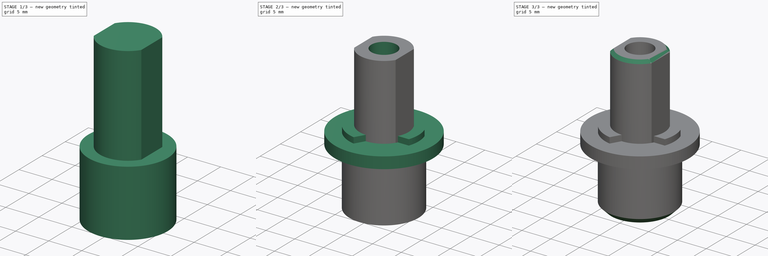
[diagram: build sequence overview — one tinted view per stage of 3, left to right]
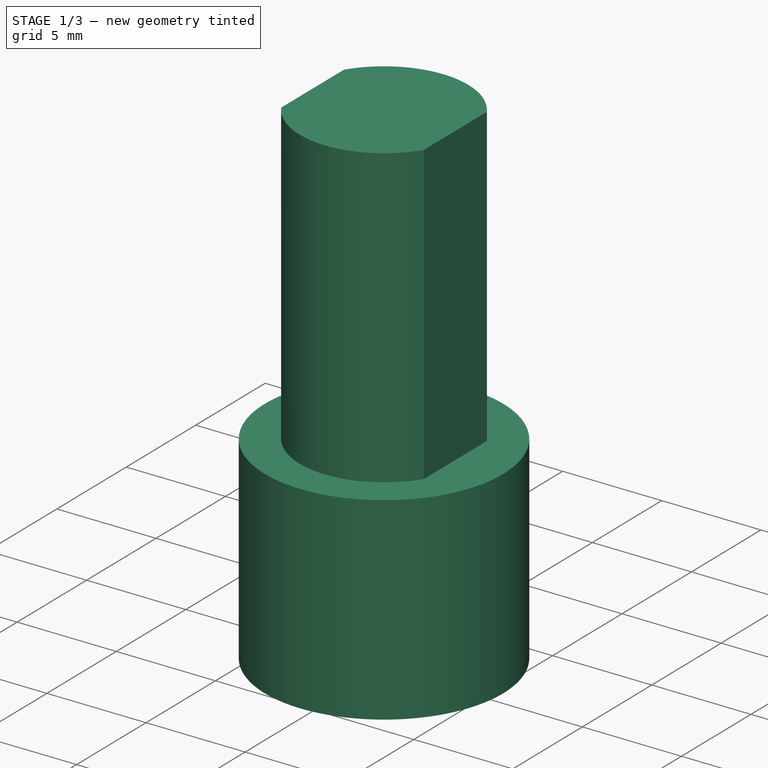
[diagram: stage 1 of 3 — iso view after this stage's code; geometry added in this stage tinted green]
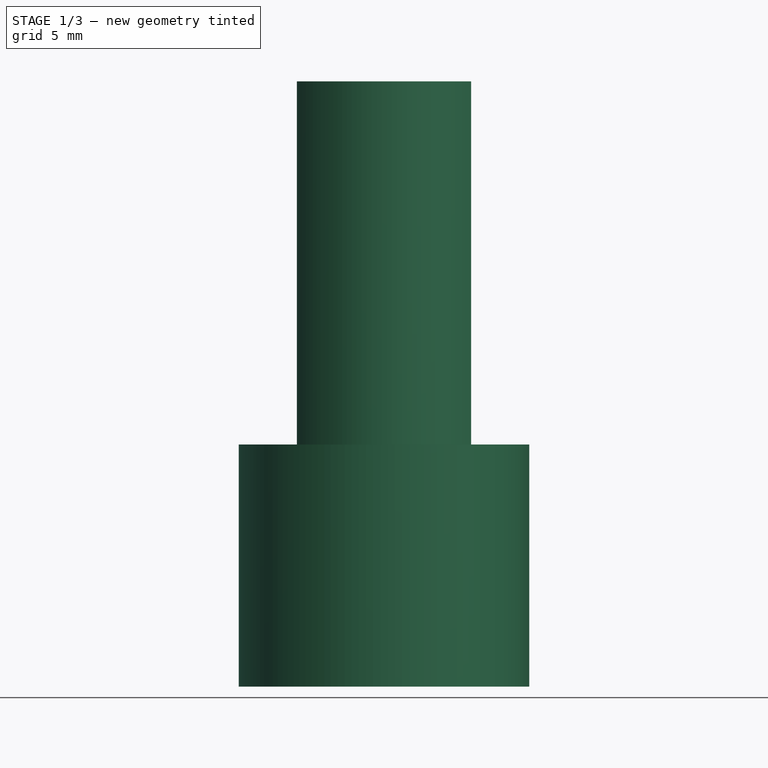
[diagram: stage 1 of 3 — front view after this stage's code; geometry added in this stage tinted green]
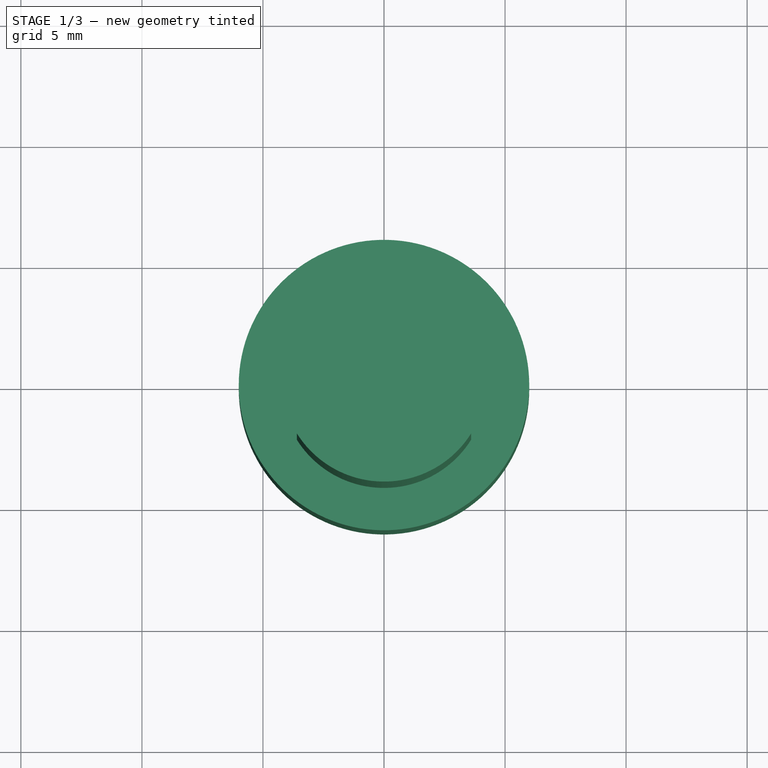
[diagram: stage 1 of 3 — top view after this stage's code; geometry added in this stage tinted green]
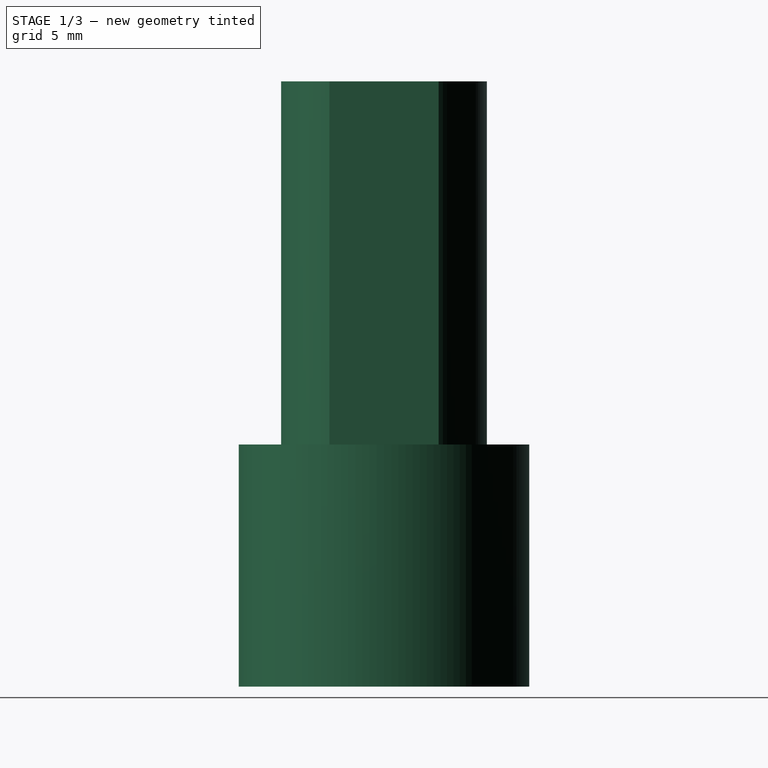
[diagram: stage 1 of 3 — right view after this stage's code; geometry added in this stage tinted green]
FCSTD DOCUMENT  (FreeCAD 0.19R24276 (Git))
Label: CS_In_bear_part_V2
License: All rights reserved
LicenseURL: http://en.wikipedia.org/wiki/All_rights_reserved
objects: Sketcher::SketchObject×5, PartDesign::Pad×4, PartDesign::Chamfer×2, PartDesign::Pocket×1, PartDesign::Body×1
note: 20 computed .brp shape members not serialized (recipe doc carries the construction recipe); baked Part::Feature solids carry a one-line shape summary decoded from their .brp

FEATURE [Sketcher::SketchObject] Sketch  label="Sketch_d12"
  FullyConstrained = true
  MapMode = 5
  Support = -> [XY_Plane]
  sketch-geometry (1):
    g0: Circle CenterX=0 CenterY=0 CenterZ=0 NormalX=0 NormalY=0 NormalZ=1 AngleXU=0 Radius=6
  constraints (2):
    c: Coincident(g0,g-1)
    c: Diameter(g0) = 12
FEATURE [PartDesign::Pad] Pad  label="Pad_h10"
  Direction = (1,1,1)
  Length = 10
  Length2 = 100
  Profile = -> Sketch
  Type = 0
FEATURE [Sketcher::SketchObject] Sketch001  label="Sketch001_d8,5"
  FullyConstrained = false
  MapMode = 5
  Placement = pos=(0,0,10) rot=(0,0,1;0rad)
  Support = -> [Pad]
  sketch-geometry (16):
    g0: ArcOfCircle CenterX=0 CenterY=0 CenterZ=0 NormalX=0 NormalY=0 NormalZ=1 AngleXU=0 Radius=4.25 StartAngle=3.70196 EndAngle=5.72282
    g1: LineSegment StartX=-7.37089 StartY=2.1 StartZ=0 EndX=-3.6 EndY=2.1 EndZ=0
    g2: LineSegment StartX=-3.6 StartY=2.1 StartZ=0 EndX=-3.6 EndY=-2.1 EndZ=0
    g3: LineSegment StartX=-3.6 StartY=-2.1 StartZ=0 EndX=-7.37089 EndY=-2.1 EndZ=0
    g4: LineSegment StartX=-7.37089 StartY=-2.1 StartZ=0 EndX=-7.37089 EndY=2.1 EndZ=0
    g5: LineSegment StartX=0 StartY=0 StartZ=0 EndX=-7.37089 EndY=0 EndZ=0
    g6: LineSegment StartX=-3.6 StartY=2.1 StartZ=0 EndX=-3.6 EndY=-2.25887 EndZ=0
    g7: LineSegment StartX=-3.6 StartY=-2.25887 StartZ=0 EndX=-3.6 EndY=2.25887 EndZ=0
    g8: LineSegment StartX=0 StartY=0 StartZ=0 EndX=0 EndY=3.57346 EndZ=0
    g9: LineSegment StartX=7.37089 StartY=2.1 StartZ=0 EndX=3.6 EndY=2.1 EndZ=0
    g10: LineSegment StartX=3.6 StartY=2.1 StartZ=0 EndX=3.6 EndY=-2.1 EndZ=0
    g11: LineSegment StartX=3.6 StartY=-2.1 StartZ=0 EndX=7.37089 EndY=-2.1 EndZ=0
    g12: LineSegment StartX=7.37089 StartY=-2.1 StartZ=0 EndX=7.37089 EndY=2.1 EndZ=0
    g13: LineSegment StartX=3.6 StartY=2.1 StartZ=0 EndX=3.6 EndY=-2.25887 EndZ=0
    g14: LineSegment StartX=3.6 StartY=-2.25887 StartZ=0 EndX=3.6 EndY=2.25887 EndZ=0
    g15: ArcOfCircle CenterX=0 CenterY=0 CenterZ=0 NormalX=0 NormalY=0 NormalZ=1 AngleXU=0 Radius=4.25 StartAngle=0.560369 EndAngle=2.58122
  constraints (33):
    c: Coincident(g0,g-1)
    c: Diameter(g0) = 8.5
    c: Coincident(g1,g2)
    c: Coincident(g2,g3)
    c: Coincident(g3,g4)
    c: Coincident(g4,g1)
    c: Horizontal(g1)
    c: Horizontal(g3)
    c: Vertical(g2)
    c: Vertical(g4)
    c: Coincident(g5,g0)
    c: PointOnObject(g5,g-1)
    c: Symmetric(g3,g1,g5)
    c: DistanceY(g3,g1) = 4.2
    c: DistanceX(g2,g0) = 3.6
    c: Coincident(g6,g1)
    c: Vertical(g6)
    c: Coincident(g7,g6)
    c: Vertical(g7)
    c: Coincident(g15,g7)
    c: Coincident(g0,g6)
    c: Coincident(g8,g0)
    c: PointOnObject(g8,g-2)
    c: Coincident(g9,g10)
    c: Coincident(g10,g11)
    c: Coincident(g11,g12)
    c: Coincident(g12,g9)
    c: Coincident(g13,g9)
    c: Coincident(g14,g13)
    c: Equal(g0,g15)
    c: Coincident(g0,g15)
    c: PointOnObject(g15,g14)
    c: PointOnObject(g0,g13)
FEATURE [PartDesign::Pad] Pad001  label="Pad001_h15"
  BaseFeature = -> Pad
  Direction = (1,1,1)
  Length = 15
  Length2 = 100
  Profile = -> Sketch001
  Type = 0
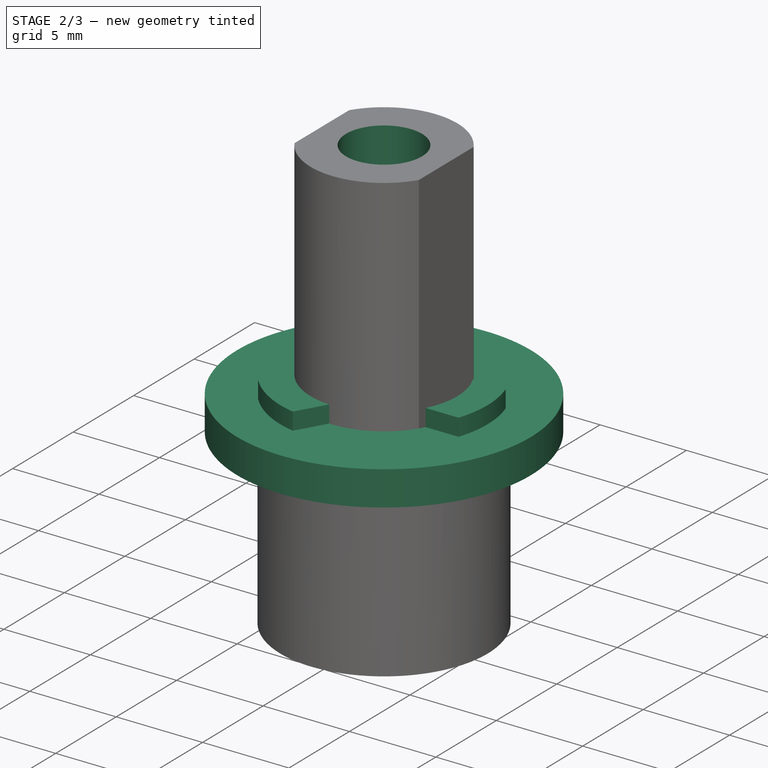
[diagram: stage 2 of 3 — iso view after this stage's code; geometry added in this stage tinted green]
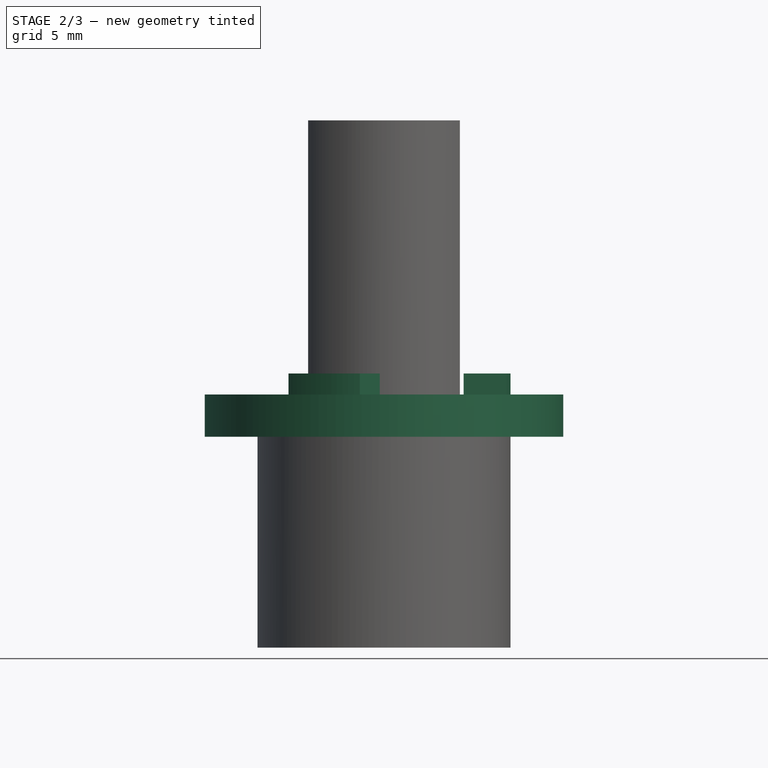
[diagram: stage 2 of 3 — front view after this stage's code; geometry added in this stage tinted green]
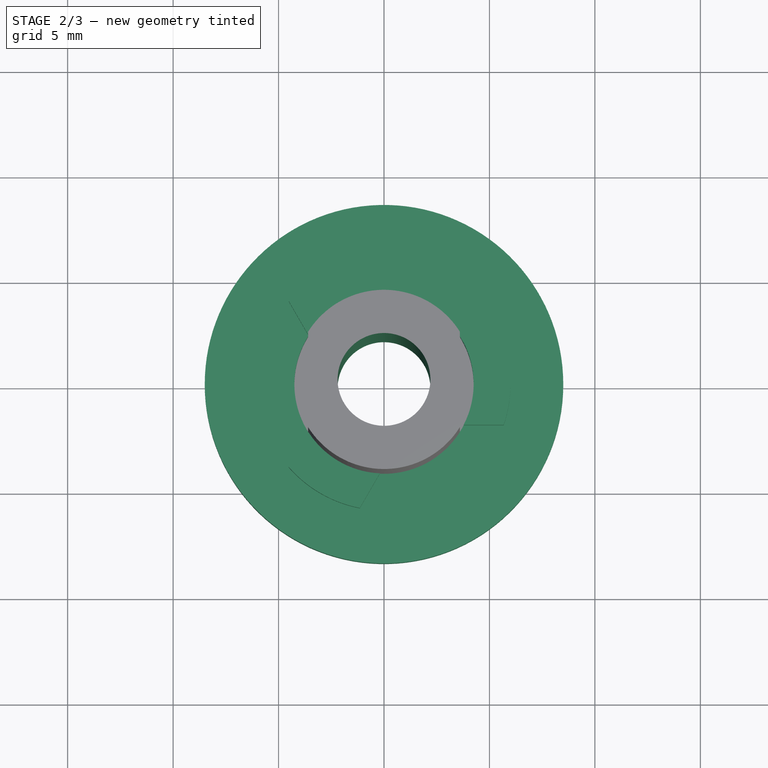
[diagram: stage 2 of 3 — top view after this stage's code; geometry added in this stage tinted green]
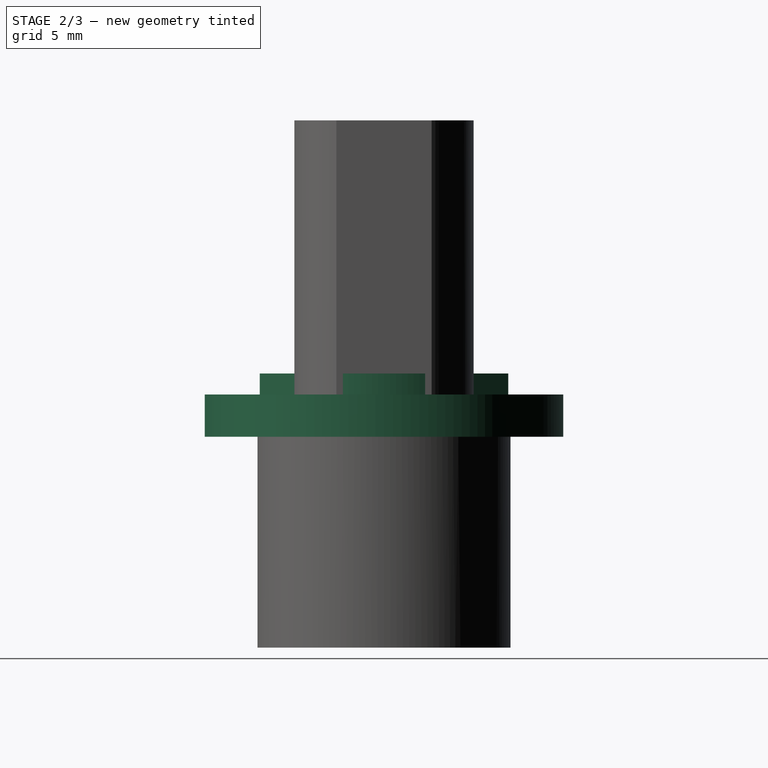
[diagram: stage 2 of 3 — right view after this stage's code; geometry added in this stage tinted green]
FEATURE [Sketcher::SketchObject] Sketch002  label="Sketch002_d4,4"
  FullyConstrained = true
  MapMode = 5
  Placement = pos=(0,0,25) rot=(0,0,1;0rad)
  Support = -> [Pad001]
  sketch-geometry (1):
    g0: Circle CenterX=0 CenterY=0 CenterZ=0 NormalX=0 NormalY=0 NormalZ=1 AngleXU=0 Radius=2.2
  constraints (2):
    c: Coincident(g0,g-1)
    c: Diameter(g0) = 4.4
FEATURE [PartDesign::Pocket] Pocket
  BaseFeature = -> Pad001
  Length = 5
  Length2 = 100
  Profile = -> Sketch002
  Type = 1
FEATURE [Sketcher::SketchObject] Sketch003  label="Sketch003_3angle"
  FullyConstrained = false
  MapMode = 5
  Placement = pos=(0,0,10) rot=(0,0,1;0rad)
  Support = -> [Pocket]
  sketch-geometry (29):
    g0: LineSegment StartX=10 StartY=0 StartZ=0 EndX=-5 EndY=8.66025 EndZ=0
    g1: LineSegment StartX=-5 StartY=8.66025 StartZ=0 EndX=-5 EndY=-8.66025 EndZ=0
    g2: LineSegment StartX=-5 StartY=-8.66025 StartZ=0 EndX=10 EndY=0 EndZ=0
    g3: Circle CenterX=0 CenterY=0 CenterZ=0 NormalX=0 NormalY=0 NormalZ=1 AngleXU=0 Radius=10
    g4: LineSegment StartX=0 StartY=0 StartZ=0 EndX=-5 EndY=8.66025 EndZ=0
    g5: LineSegment StartX=0 StartY=0 StartZ=0 EndX=-5 EndY=-8.66025 EndZ=0
    g6: LineSegment StartX=0 StartY=0 StartZ=0 EndX=8.76124 EndY=0 EndZ=0
    g7: LineSegment StartX=-6.68875 StartY=7.68525 StartZ=0 EndX=-1.879 EndY=-0.645478 EndZ=0
    g8: LineSegment StartX=-3.31125 StartY=9.63525 StartZ=0 EndX=1.70216 EndY=0.951767 EndZ=0
    g9: LineSegment StartX=-6.68875 StartY=7.68525 StartZ=0 EndX=-3.31125 EndY=9.63525 EndZ=0
    g10: LineSegment StartX=10 StartY=1.95 StartZ=0 EndX=0.680018 EndY=1.95 EndZ=0
    g11: LineSegment StartX=10 StartY=-1.95 StartZ=0 EndX=9.80803 EndY=-1.95 EndZ=0
    g12: LineSegment StartX=10 StartY=1.95 StartZ=0 EndX=10 EndY=-1.95 EndZ=0
    g13: LineSegment StartX=-6.68875 StartY=-7.68525 StartZ=0 EndX=-1.98378 EndY=0.463996 EndZ=0
    g14: LineSegment StartX=-3.31125 StartY=-9.63525 StartZ=0 EndX=1.64472 EndY=-1.05126 EndZ=0
    g15: LineSegment StartX=-3.31125 StartY=-9.63525 StartZ=0 EndX=-6.68875 EndY=-7.68525 EndZ=0
    g16: ArcOfCircle CenterX=0 CenterY=0 CenterZ=0 NormalX=0 NormalY=0 NormalZ=1 AngleXU=0 Radius=4.25 StartAngle=5.80651 EndAngle=6.75986
    g17: ArcOfCircle CenterX=0 CenterY=0 CenterZ=0 NormalX=0 NormalY=0 NormalZ=1 AngleXU=0 Radius=6 StartAngle=1.76338 EndAngle=2.42541
    g18: LineSegment StartX=5.67428 StartY=-1.95 StartZ=0 EndX=1.14275 EndY=-1.95 EndZ=0
    g19: ArcOfCircle CenterX=0 CenterY=0 CenterZ=0 NormalX=0 NormalY=0 NormalZ=1 AngleXU=0 Radius=6 StartAngle=3.85778 EndAngle=4.5198
    g20: ArcOfCircle CenterX=0 CenterY=0 CenterZ=0 NormalX=0 NormalY=0 NormalZ=1 AngleXU=0 Radius=6 StartAngle=5.95217 EndAngle=6.6142
    g21: ArcOfCircle CenterX=0 CenterY=0 CenterZ=0 NormalX=0 NormalY=0 NormalZ=1 AngleXU=0 Radius=4.25 StartAngle=3.71212 EndAngle=4.66546
    g22: ArcOfCircle CenterX=0 CenterY=0 CenterZ=0 NormalX=0 NormalY=0 NormalZ=1 AngleXU=0 Radius=4.25 StartAngle=1.61772 EndAngle=2.57107
    g23: LineSegment StartX=-3.57687 StartY=2.29532 StartZ=0 EndX=-4.52589 EndY=3.93907 EndZ=0
    g24: LineSegment StartX=-1.14839 StartY=5.88907 StartZ=0 EndX=-0.199371 EndY=4.24532 EndZ=0
    g25: LineSegment StartX=3.77624 StartY=1.95 StartZ=0 EndX=5.67428 EndY=1.95 EndZ=0
    g26: LineSegment StartX=3.77624 StartY=-1.95 StartZ=0 EndX=5.67428 EndY=-1.95 EndZ=0
    g27: LineSegment StartX=-1.14839 StartY=-5.88907 StartZ=0 EndX=-0.199371 EndY=-4.24532 EndZ=0
    g28: LineSegment StartX=-4.52589 StartY=-3.93907 StartZ=0 EndX=-3.57687 EndY=-2.29532 EndZ=0
  constraints (76):
    c: Coincident(g0,g1)
    c: Coincident(g1,g2)
    c: Coincident(g2,g0)
    c: Equal(g0,g1)
    c: Equal(g0,g2)
    c: PointOnObject(g0,g3)
    c: PointOnObject(g1,g3)
    c: PointOnObject(g2,g3)
    c: Coincident(g3,g-1)
    c: PointOnObject(g2,g-1)
    c: Coincident(g4,g-1)
    c: Coincident(g4,g0)
    c: Coincident(g5,g-1)
    c: Coincident(g5,g1)
    c: Coincident(g6,g-1)
    c: Parallel(g7,g4)
    c: Parallel(g4,g8)
    c: Coincident(g9,g7)
    c: Perpendicular(g9,g7)
    c: Coincident(g8,g9)
    c: Symmetric(g7,g8,g0)
    c: Diameter(g3) = 20
    c: Distance(g7,g8) = 3.9
    c: Horizontal(g10)
    c: Horizontal(g11)
    c: Coincident(g12,g10)
    c: Coincident(g12,g11)
    c: Vertical(g12)
    c: Symmetric(g10,g11,g0)
    c: DistanceY(g11,g10) = 3.9
    c: Parallel(g13,g5)
    c: Parallel(g5,g14)
    c: Coincident(g15,g14)
    c: Coincident(g15,g13)
    c: Perpendicular(g13,g15)
    c: Distance(g15) = 3.9
    c: Symmetric(g13,g14,g1)
    c: Coincident(g16,g-1)
    c: Diameter(g16) = 8.5
    c: Coincident(g17,g-1)
    c: Diameter(g17) = 12
    c: PointOnObject(g11,g3)
    c: PointOnObject(g18,g17)
    c: Tangent(g11,g18)
    c: PointOnObject(g17,g8)
    c: PointOnObject(g20,g10)
    c: Equal(g17,g19)
    c: PointOnObject(g17,g7)
    c: PointOnObject(g19,g13)
    c: Coincident(g17,g19)
    c: Equal(g19,g20)
    c: PointOnObject(g19,g14)
    c: PointOnObject(g20,g18)
    c: Coincident(g19,g20)
    c: Equal(g16,g21)
    c: Coincident(g16,g21)
    c: PointOnObject(g21,g14)
    c: PointOnObject(g21,g13)
    c: PointOnObject(g22,g7)
    c: Equal(g16,g22)
    c: PointOnObject(g22,g8)
    c: Coincident(g16,g22)
    c: PointOnObject(g16,g10)
    c: PointOnObject(g16,g18)
    c: Coincident(g23,g22)
    c: Coincident(g23,g17)
    c: Coincident(g24,g17)
    c: Coincident(g24,g22)
    c: Coincident(g25,g16)
    c: Coincident(g26,g16)
    c: Coincident(g27,g19)
    c: Coincident(g27,g21)
    c: Coincident(g28,g19)
    c: Coincident(g28,g21)
    c: PointOnObject(g26,g20)
    c: PointOnObject(g25,g20)
FEATURE [PartDesign::Pad] Pad002  label="Pad002_h3"
  BaseFeature = -> Pocket
  Direction = (1,1,1)
  Length = 3
  Length2 = 100
  Profile = -> Sketch003
  Type = 0
FEATURE [Sketcher::SketchObject] Sketch004  label="Sketch004_d8,5_d17"
  FullyConstrained = true
  MapMode = 5
  Placement = pos=(0,0,10) rot=(0,0,1;0rad)
  Support = -> [Pad002]
  sketch-geometry (2):
    g0: Circle CenterX=0 CenterY=0 CenterZ=0 NormalX=0 NormalY=0 NormalZ=1 AngleXU=0 Radius=8.5
    g1: Circle CenterX=0 CenterY=0 CenterZ=0 NormalX=0 NormalY=0 NormalZ=1 AngleXU=0 Radius=4.25
  constraints (4):
    c: Coincident(g0,g-1)
    c: Coincident(g1,g0)
    c: Diameter(g0) = 17
    c: Diameter(g1) = 8.5
FEATURE [PartDesign::Pad] Pad003  label="Pad003_h2"
  BaseFeature = -> Pad002
  Direction = (1,1,1)
  Length = 2
  Length2 = 100
  Profile = -> Sketch004
  Type = 0
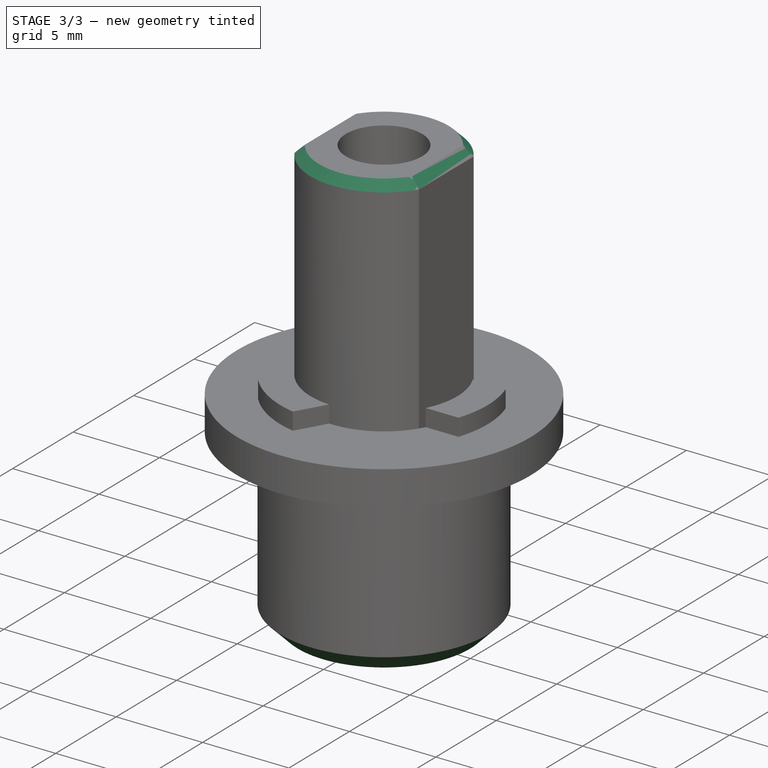
[diagram: stage 3 of 3 — iso view after this stage's code; geometry added in this stage tinted green]
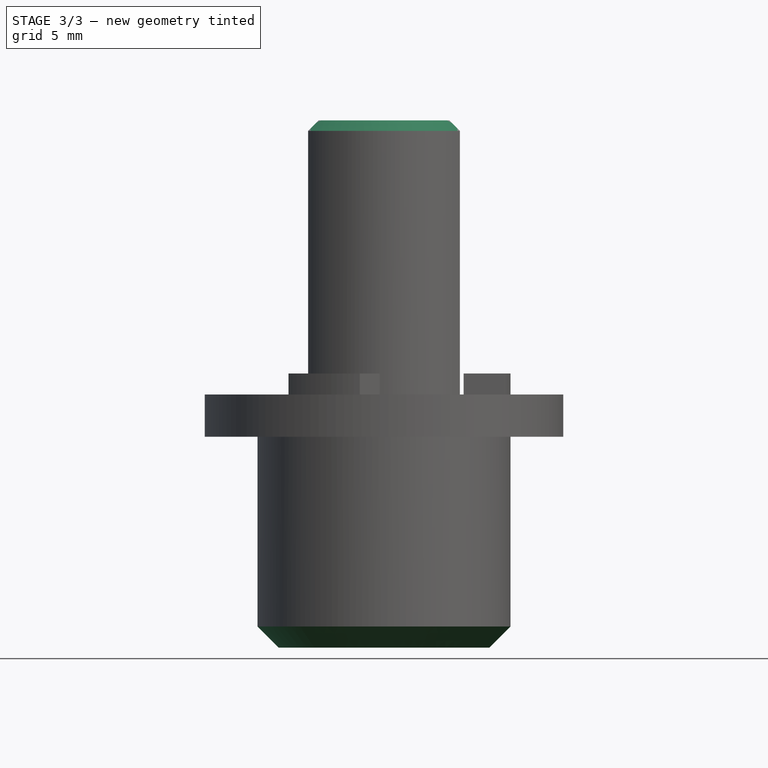
[diagram: stage 3 of 3 — front view after this stage's code; geometry added in this stage tinted green]
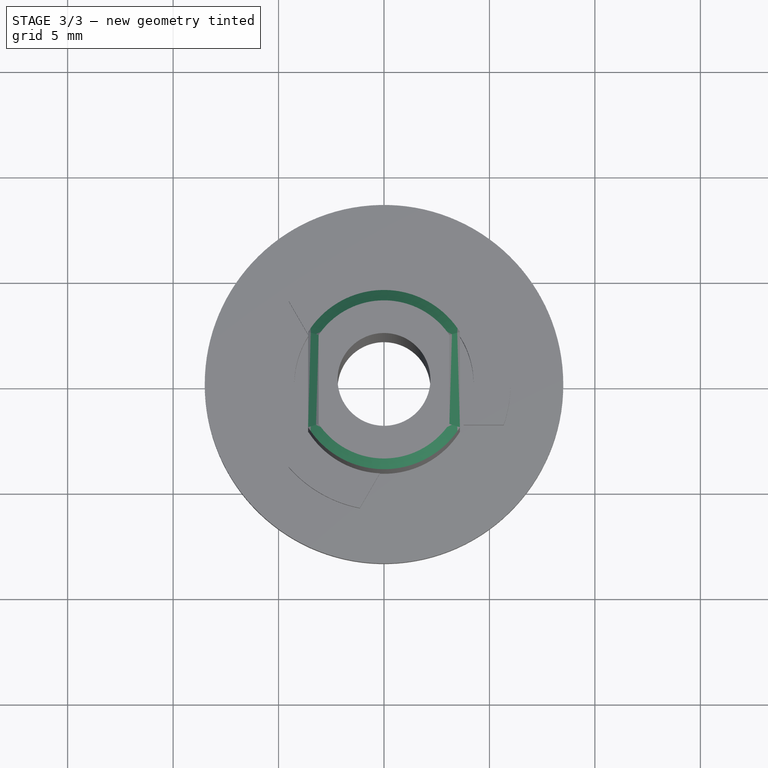
[diagram: stage 3 of 3 — top view after this stage's code; geometry added in this stage tinted green]
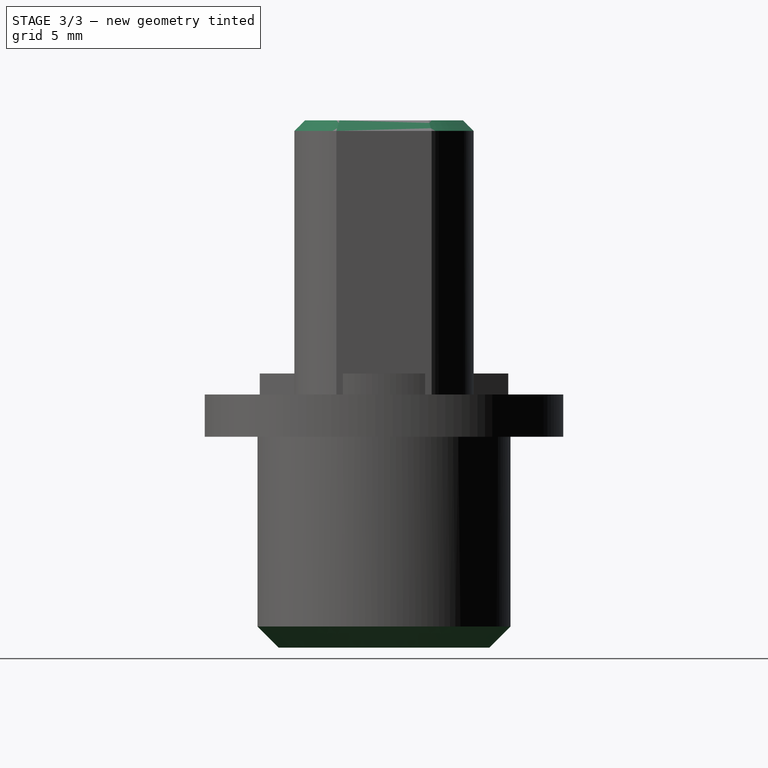
[diagram: stage 3 of 3 — right view after this stage's code; geometry added in this stage tinted green]
FEATURE [PartDesign::Chamfer] Chamfer
  Angle = 45
  Base = -> Pad003 [Edge17,Edge19,Edge18,Edge16]
  BaseFeature = -> Pad003
  ChamferType = 0
  FlipDirection = false
  Size = 0.5
  Size2 = 1
  SupportTransform = false
FEATURE [PartDesign::Chamfer] Chamfer001
  Angle = 45
  Base = -> Chamfer [Edge36]
  BaseFeature = -> Chamfer
  ChamferType = 0
  FlipDirection = false
  Size = 1
  Size2 = 1
  SupportTransform = false
FEATURE [PartDesign::Body] Body
  Group = -> [Sketch,Pad,Sketch001,Pad001,Sketch002,Pocket,Sketch003,Pad002,Sketch004,Pad003,Chamfer,Chamfer001]
  Origin = -> Origin
  Tip = -> Chamfer001
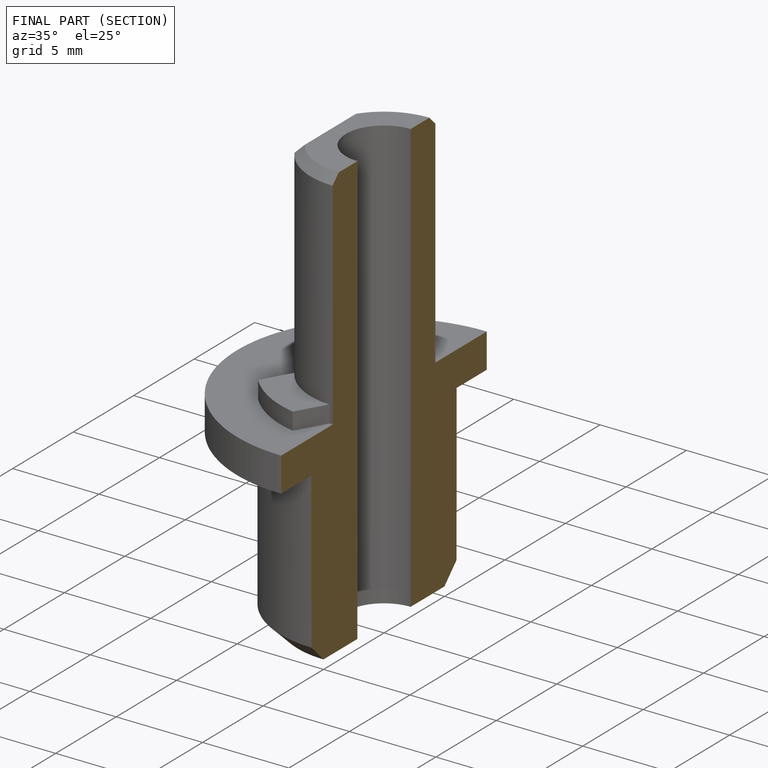
[diagram: finished part — half-section view (interior)]
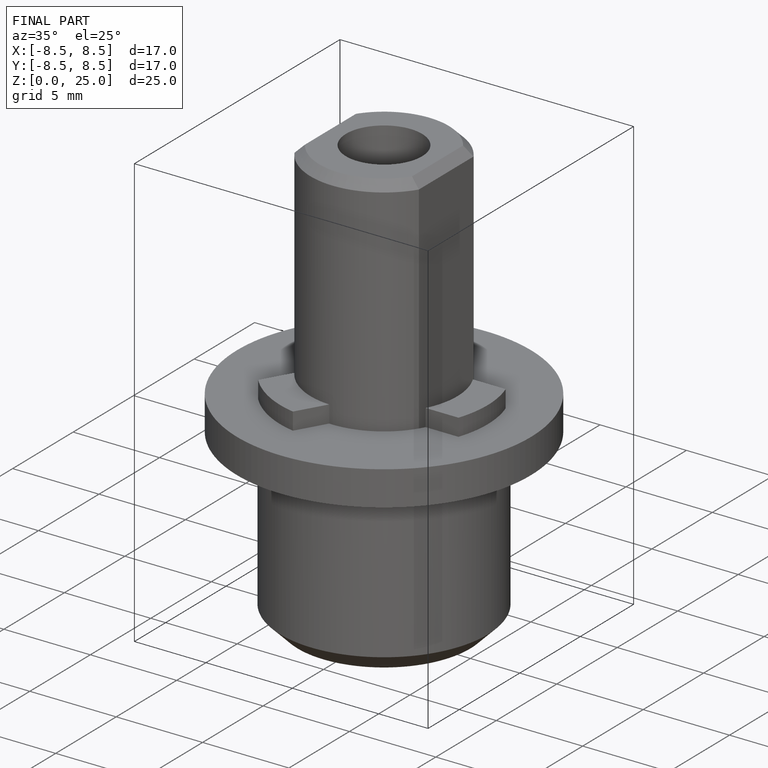
[diagram: finished part — iso view with bounding-box wireframe]
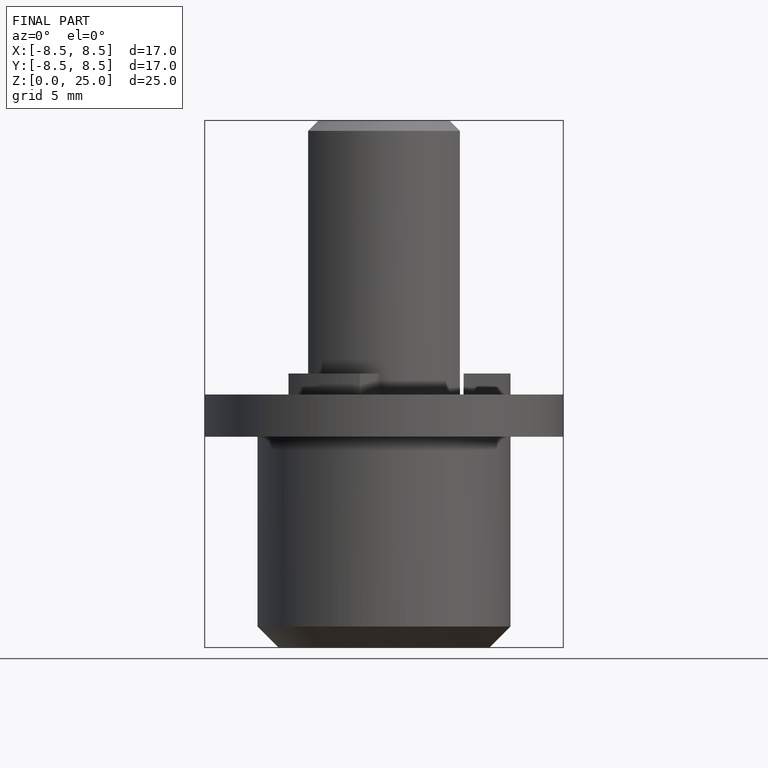
[diagram: finished part — front view with bounding-box wireframe]
